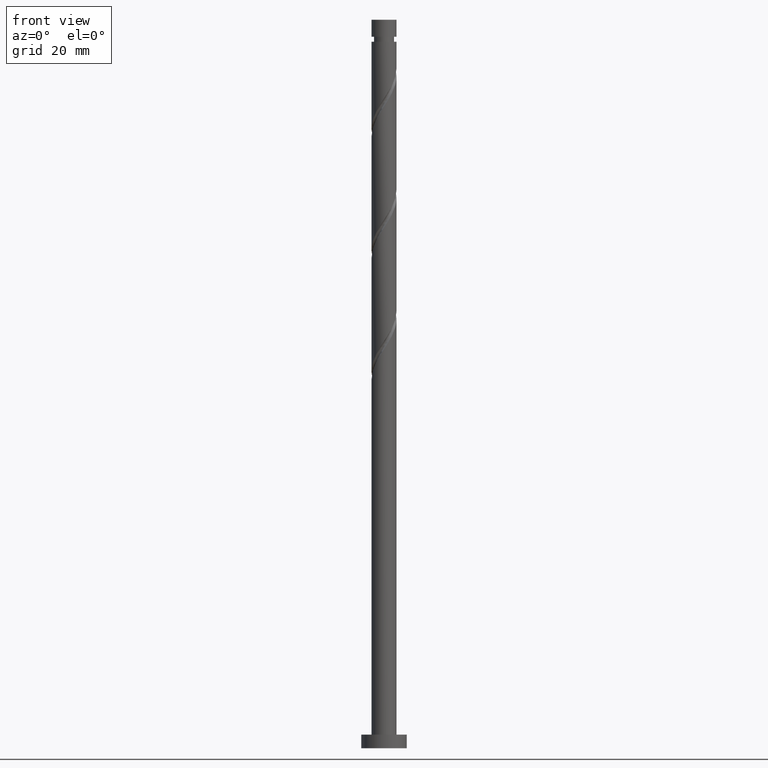
[diagram: clean part render]
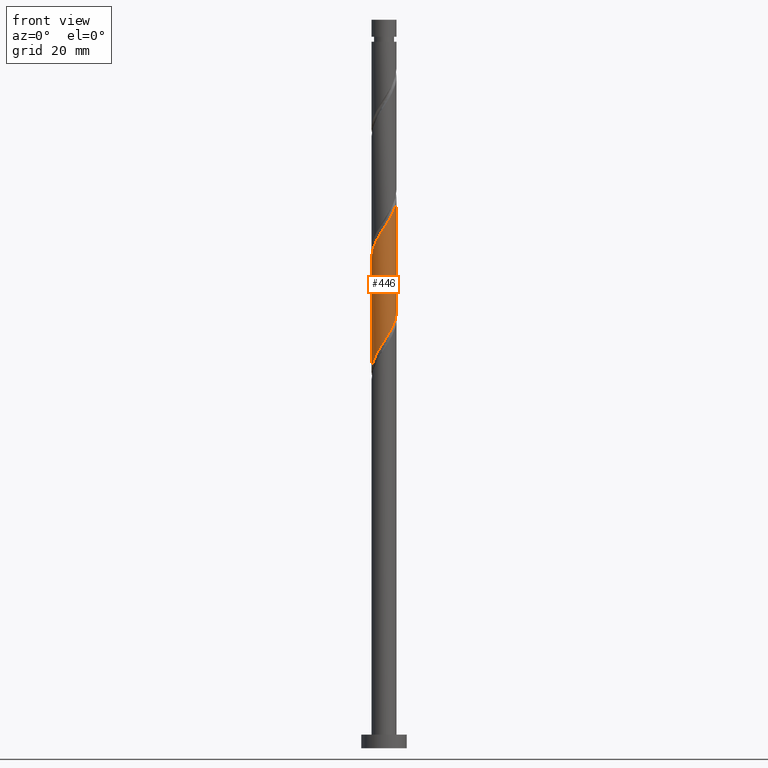
[diagram: same view with one face highlighted and labeled with its STEP entity id]
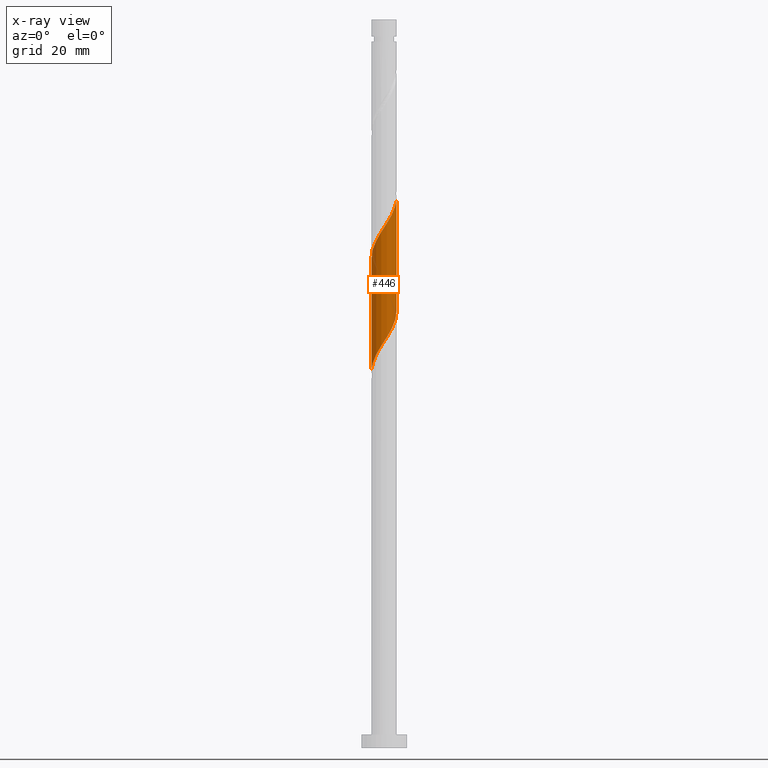
[diagram: x-ray of the same camera — body ghosted, the highlighted face saturated]
A machine part, front view. The second image highlights one B-rep face of the part: STEP entity #446.
The next image is the same camera in x-ray: the body ghosted, the highlighted face saturated — about 0% of this face is hidden behind the body in this view.
In plain terms, the highlighted cylindrical surface (edge-blend (fillet) strip) has radius 2.75 mm, axis along (-0, -0, -1).
Its self-contained STEP definition (entity closure, byte-faithful):
#9 = CARTESIAN_POINT ( 'NONE',  ( -0.1597605880921889598, -2.773681677939491497, 89.08983347394001839 ) ) ;
#31 = CARTESIAN_POINT ( 'NONE',  ( -2.750000000000000000, 2.587529981704879547E-15, 82.66656068051365480 ) ) ;
#80 = CARTESIAN_POINT ( 'NONE',  ( 2.722713295520007737, -0.5528705150786890066, 95.15043953454608072 ) ) ;
#87 = CARTESIAN_POINT ( 'NONE',  ( -2.224125231963132165, -1.617333284312471475, 110.3019546860612508 ) ) ;
#95 = CARTESIAN_POINT ( 'NONE',  ( -0.9966568199191147004, -2.563040222725492701, 112.7261971103036871 ) ) ;
#100 = CARTESIAN_POINT ( 'NONE',  ( 2.750000000000000000, -3.170845989141239485E-15, 95.99989401384699761 ) ) ;
#107 = CARTESIAN_POINT ( 'NONE',  ( -2.745449597776796313, -0.1581344556611554431, 107.8777122618188145 ) ) ;
#124 = VERTEX_POINT ( 'NONE', #334 ) ;
#128 = CARTESIAN_POINT ( 'NONE',  ( -2.678791222997725097, -0.6217536357676980430, 83.63528801939457935 ) ) ;
#185 = DIRECTION ( 'NONE',  ( -0.000000000000000000, -0.000000000000000000, -1.000000000000000000 ) ) ;
#205 = CARTESIAN_POINT ( 'NONE',  ( 0.6281472692551457460, -2.706337839991914240, 90.30195468606123654 ) ) ;
#219 =( BOUNDED_CURVE ( )  B_SPLINE_CURVE ( 2, ( #850, #223, #107, #617, #1117, #489, #87, #1362, #458, #1224, #95, #952, #981, #605, #1102, #478, #972, #1106, #652, #1154, #488, #1489, #1630, #1016, #352 ),
 .UNSPECIFIED., .F., .T. ) 
 B_SPLINE_CURVE_WITH_KNOTS ( ( 3, 2, 2, 2, 2, 2, 2, 2, 2, 2, 2, 2, 3 ),
 ( 0.3045252162417514952, 0.3068181818181817677, 0.3181818181818182323, 0.3295454545454545858, 0.3409090909090909394, 0.3522727272727272929, 0.3636363636363636465, 0.3750000000000000000, 0.3863636363636363535, 0.3977272727272727071, 0.4090909090909090606, 0.4204545454545454142, 0.4295252162417514952 ),
 .UNSPECIFIED. ) 
 CURVE ( )  GEOMETRIC_REPRESENTATION_ITEM ( )  RATIONAL_B_SPLINE_CURVE ( ( 0.9061101570135661198, 0.9072237824201482281, 0.9090909090909256030, 0.8998376744372277303, 0.9090909090909256030, 0.8998376744372277303, 0.9090909090909256030, 0.8998376744372277303, 0.9090909090909256030, 0.8998376744372277303, 0.9090909090909256030, 0.8998376744372277303, 0.9090909090909256030, 0.8998376744372277303, 0.9090909090909256030, 0.8998376744372277303, 0.9090909090909256030, 0.8998376744372277303, 0.9090909090909256030, 0.8998376744372277303, 0.9090909090909256030, 0.8998376744372277303, 0.9090909090909256030, 0.9017048011080051051, 0.9061101570135661198 ) ) 
 REPRESENTATION_ITEM ( '' )  );
#223 = CARTESIAN_POINT ( 'NONE',  ( -2.750000000000003109, -0.07913269794051833173, 107.7564163932967602 ) ) ;
#229 = CARTESIAN_POINT ( 'NONE',  ( 2.224125231963128613, -1.617333284312469255, 93.33225771636426771 ) ) ;
#236 = CARTESIAN_POINT ( 'NONE',  ( -1.284345140793827555, -2.431657368816438236, 87.27165165575826222 ) ) ;
#272 = EDGE_CURVE ( 'NONE', #908, #124, #1065, .T. ) ;
#276 = CARTESIAN_POINT ( 'NONE',  ( 0.000000000000000000, 0.000000000000000000, 160.0000000000000000 ) ) ;
#288 = ORIENTED_EDGE ( 'NONE', *, *, #272, .F. ) ;
#334 = CARTESIAN_POINT ( 'NONE',  ( -2.750000000000000000, 2.587529981704879547E-15, 82.66656068051365480 ) ) ;
#342 = CARTESIAN_POINT ( 'NONE',  ( 2.745449597776791872, -0.1581344556611563590, 95.75650014060671822 ) ) ;
#352 = CARTESIAN_POINT ( 'NONE',  ( 2.750000000000004441, 1.705077560198580878E-15, 120.9676517219119063 ) ) ;
#381 = CARTESIAN_POINT ( 'NONE',  ( -2.589396545961874185, -1.006905667779019353, 84.24134862545520264 ) ) ;
#391 = CARTESIAN_POINT ( 'NONE',  ( -1.917397186166559075, -1.971316319234577064, 86.05953044363700144 ) ) ;
#446 = ADVANCED_FACE ( 'NONE', ( #1024 ), #1546, .T. ) ;
#458 = CARTESIAN_POINT ( 'NONE',  ( -1.678377091053239623, -2.178428410627184508, 111.5140758981824547 ) ) ;
#478 = CARTESIAN_POINT ( 'NONE',  ( 0.9347255927250950336, -2.616318322060513069, 115.7565001406067182 ) ) ;
#481 = EDGE_LOOP ( 'NONE', ( #1263, #761, #911, #288 ) ) ;
#485 = CARTESIAN_POINT ( 'NONE',  ( 2.456662652402862523, -1.297552352829636879, 93.93831832242487678 ) ) ;
#488 = CARTESIAN_POINT ( 'NONE',  ( 2.395113114716217684, -1.351270945337905927, 118.7868031709097352 ) ) ;
#489 = CARTESIAN_POINT ( 'NONE',  ( -2.456662652402866964, -1.297552352829637989, 109.6958940800006701 ) ) ;
#518 = VERTEX_POINT ( 'NONE', #822 ) ;
#523 = CARTESIAN_POINT ( 'NONE',  ( -0.9347255927250943675, -2.616318322060508628, 87.87771226181884288 ) ) ;
#533 = CARTESIAN_POINT ( 'NONE',  ( -0.5472430904086417192, -2.695000000000000284, 88.48377286787940932 ) ) ;
#591 = CARTESIAN_POINT ( 'NONE',  ( 1.678377091053236736, -2.178428410627182288, 92.12013650424304956 ) ) ;
#605 = CARTESIAN_POINT ( 'NONE',  ( 0.1597605880921880717, -2.773681677939495493, 114.5443789284855285 ) ) ;
#617 = CARTESIAN_POINT ( 'NONE',  ( -2.722713295520012178, -0.5528705150786885625, 108.4837728678794520 ) ) ;
#652 = CARTESIAN_POINT ( 'NONE',  ( 1.917397186166560852, -1.971316319234581060, 117.5746819587885312 ) ) ;
#659 = DIRECTION ( 'NONE',  ( -1.000000000000000000, 0.000000000000000000, 0.000000000000000000 ) ) ;
#685 = DIRECTION ( 'NONE',  ( -0.000000000000000000, -0.000000000000000000, -1.000000000000000000 ) ) ;
#732 = EDGE_CURVE ( 'NONE', #518, #908, #827, .T. ) ;
#742 = CARTESIAN_POINT ( 'NONE',  ( 0.2341933405814775881, -2.740009758965702424, 89.69589408000062747 ) ) ;
#761 = ORIENTED_EDGE ( 'NONE', *, *, #1505, .F. ) ;
#822 = CARTESIAN_POINT ( 'NONE',  ( 2.750000000000004441, 1.705077560198580878E-15, 120.9676517219119063 ) ) ;
#826 = CARTESIAN_POINT ( 'NONE',  ( 1.991587811523396256, -1.937114215795302075, 92.72619711030365863 ) ) ;
#827 = LINE ( 'NONE', #1345, #833 ) ;
#833 = VECTOR ( 'NONE', #185, 1000.000000000000000 ) ;
#834 = CARTESIAN_POINT ( 'NONE',  ( 2.750000000000000444, -0.07913269794050607764, 95.87779600912880085 ) ) ;
#850 = CARTESIAN_POINT ( 'NONE',  ( -2.750000000000003109, -1.847167356881795820E-15, 107.6343183885785351 ) ) ;
#890 = CARTESIAN_POINT ( 'NONE',  ( -2.749999999999999556, -0.3149545503090902532, 83.15252063348495426 ) ) ;
#896 = CARTESIAN_POINT ( 'NONE',  ( -2.395113114716214575, -1.351270945337903262, 84.84740923151579750 ) ) ;
#908 = VERTEX_POINT ( 'NONE', #100 ) ;
#911 = ORIENTED_EDGE ( 'NONE', *, *, #1658, .T. ) ;
#952 = CARTESIAN_POINT ( 'NONE',  ( -0.6281472692551464121, -2.706337839991918237, 113.3322577163643246 ) ) ;
#972 = CARTESIAN_POINT ( 'NONE',  ( 1.284345140793828222, -2.431657368816442233, 116.3625607466673131 ) ) ;
#981 = CARTESIAN_POINT ( 'NONE',  ( -0.2341933405814791702, -2.740009758965705977, 113.9383183224248768 ) ) ;
#989 = CARTESIAN_POINT ( 'NONE',  ( 2.749999999999999556, -3.170845989141239485E-15, 95.99989401384699761 ) ) ;
#1016 = CARTESIAN_POINT ( 'NONE',  ( 2.750000000000005329, -0.3149545503090818710, 120.4816917689405926 ) ) ;
#1024 = FACE_OUTER_BOUND ( 'NONE', #481, .T. ) ;
#1065 =( BOUNDED_CURVE ( )  B_SPLINE_CURVE ( 2, ( #989, #834, #342, #80, #1112, #485, #229, #826, #591, #1479, #1352, #205, #742, #9, #533, #523, #236, #1249, #391, #1290, #896, #381, #128, #890, #31 ),
 .UNSPECIFIED., .F., .T. ) 
 B_SPLINE_CURVE_WITH_KNOTS ( ( 3, 2, 2, 2, 2, 2, 2, 2, 2, 2, 2, 2, 3 ),
 ( 0.8045252162417511066, 0.8068181818181817677, 0.8181818181818182323, 0.8295454545454545858, 0.8409090909090909394, 0.8522727272727272929, 0.8636363636363636465, 0.8750000000000000000, 0.8863636363636363535, 0.8977272727272727071, 0.9090909090909090606, 0.9204545454545454142, 0.9295252162417512176 ),
 .UNSPECIFIED. ) 
 CURVE ( )  GEOMETRIC_REPRESENTATION_ITEM ( )  RATIONAL_B_SPLINE_CURVE ( ( 0.9061101570135603467, 0.9072237824201425660, 0.9090909090909201629, 0.8998376744372224012, 0.9090909090909201629, 0.8998376744372224012, 0.9090909090909201629, 0.8998376744372224012, 0.9090909090909201629, 0.8998376744372224012, 0.9090909090909201629, 0.8998376744372224012, 0.9090909090909201629, 0.8998376744372224012, 0.9090909090909201629, 0.8998376744372224012, 0.9090909090909201629, 0.8998376744372224012, 0.9090909090909201629, 0.8998376744372224012, 0.9090909090909201629, 0.8998376744372224012, 0.9090909090909201629, 0.9017048011079999981, 0.9061101570135604577 ) ) 
 REPRESENTATION_ITEM ( '' )  );
#1102 = CARTESIAN_POINT ( 'NONE',  ( 0.5472430904086413861, -2.695000000000004281, 115.1504395345460807 ) ) ;
#1106 = CARTESIAN_POINT ( 'NONE',  ( 1.633964688862563186, -2.246996415572371841, 116.9686213527279364 ) ) ;
#1107 = CARTESIAN_POINT ( 'NONE',  ( -2.750000000000003553, -1.847167356881795820E-15, 107.6343183885785351 ) ) ;
#1112 = CARTESIAN_POINT ( 'NONE',  ( 2.589687973961434242, -0.9252114339541623877, 94.54437892848547165 ) ) ;
#1117 = CARTESIAN_POINT ( 'NONE',  ( -2.589687973961440015, -0.9252114339541630539, 109.0898334739400468 ) ) ;
#1154 = CARTESIAN_POINT ( 'NONE',  ( 2.200829683470559406, -1.695636222896790501, 118.1807425648491403 ) ) ;
#1194 = LINE ( 'NONE', #1579, #1600 ) ;
#1224 = CARTESIAN_POINT ( 'NONE',  ( -1.365166370583082545, -2.419742605459066720, 112.1201365042431064 ) ) ;
#1249 = CARTESIAN_POINT ( 'NONE',  ( -1.633964688862560743, -2.246996415572368289, 86.66559104969763894 ) ) ;
#1263 = ORIENTED_EDGE ( 'NONE', *, *, #732, .F. ) ;
#1290 = CARTESIAN_POINT ( 'NONE',  ( -2.200829683470556741, -1.695636222896787393, 85.45346983757640658 ) ) ;
#1292 = AXIS2_PLACEMENT_3D ( 'NONE', #276, #1423, #659 ) ;
#1345 = CARTESIAN_POINT ( 'NONE',  ( 2.750000000000000000, 3.367778697655221012E-16, 160.0000000000000000 ) ) ;
#1352 = CARTESIAN_POINT ( 'NONE',  ( 0.9966568199191122579, -2.563040222725488704, 90.90801529212185983 ) ) ;
#1362 = CARTESIAN_POINT ( 'NONE',  ( -1.991587811523397811, -1.937114215795304739, 110.9080152921218740 ) ) ;
#1423 = DIRECTION ( 'NONE',  ( -0.000000000000000000, -0.000000000000000000, -1.000000000000000000 ) ) ;
#1479 = CARTESIAN_POINT ( 'NONE',  ( 1.365166370583079214, -2.419742605459063611, 91.51407589818246890 ) ) ;
#1488 = VERTEX_POINT ( 'NONE', #1107 ) ;
#1489 = CARTESIAN_POINT ( 'NONE',  ( 2.589396545961878182, -1.006905667779020686, 119.3928637769703442 ) ) ;
#1505 = EDGE_CURVE ( 'NONE', #1488, #518, #219, .T. ) ;
#1546 = CYLINDRICAL_SURFACE ( 'NONE', #1292, 2.750000000000000000 ) ;
#1579 = CARTESIAN_POINT ( 'NONE',  ( -2.750000000000000000, 0.000000000000000000, 160.0000000000000000 ) ) ;
#1600 = VECTOR ( 'NONE', #685, 1000.000000000000000 ) ;
#1630 = CARTESIAN_POINT ( 'NONE',  ( 2.678791222997729093, -0.6217536357676993752, 119.9989243830309533 ) ) ;
#1658 = EDGE_CURVE ( 'NONE', #1488, #124, #1194, .T. ) ;